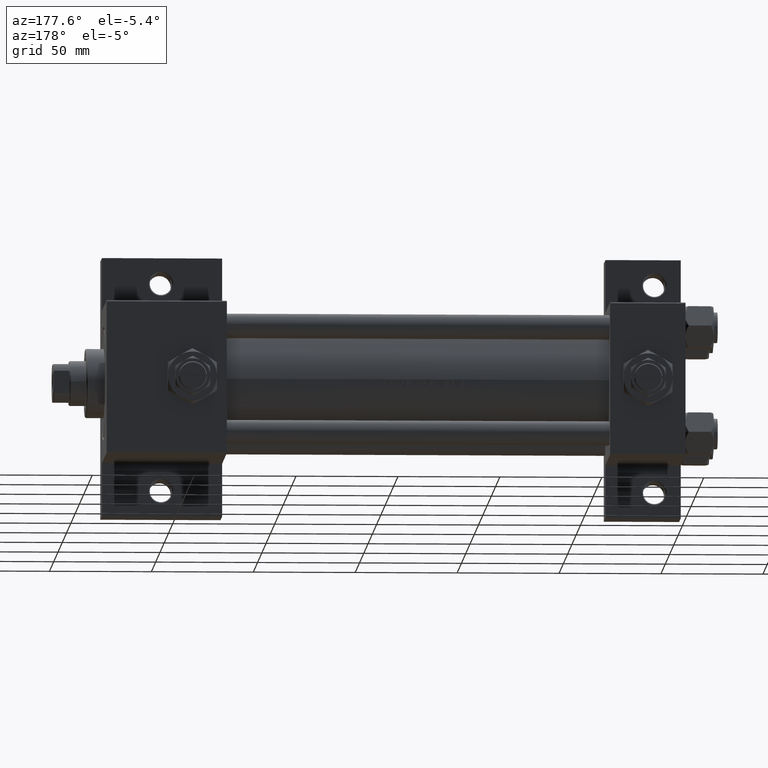
[diagram: clean part render]
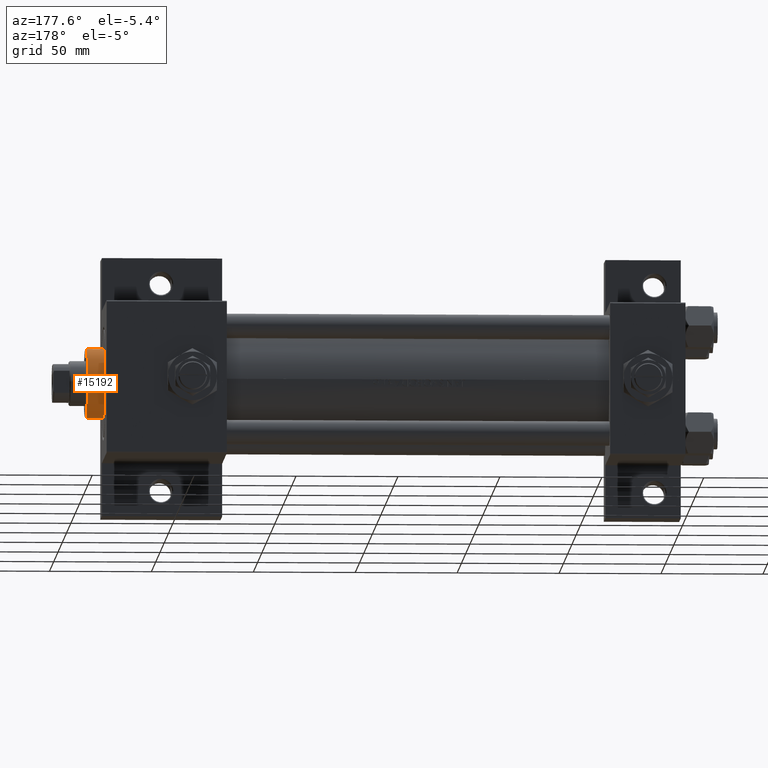
[diagram: same view with one face highlighted and labeled with its STEP entity id]
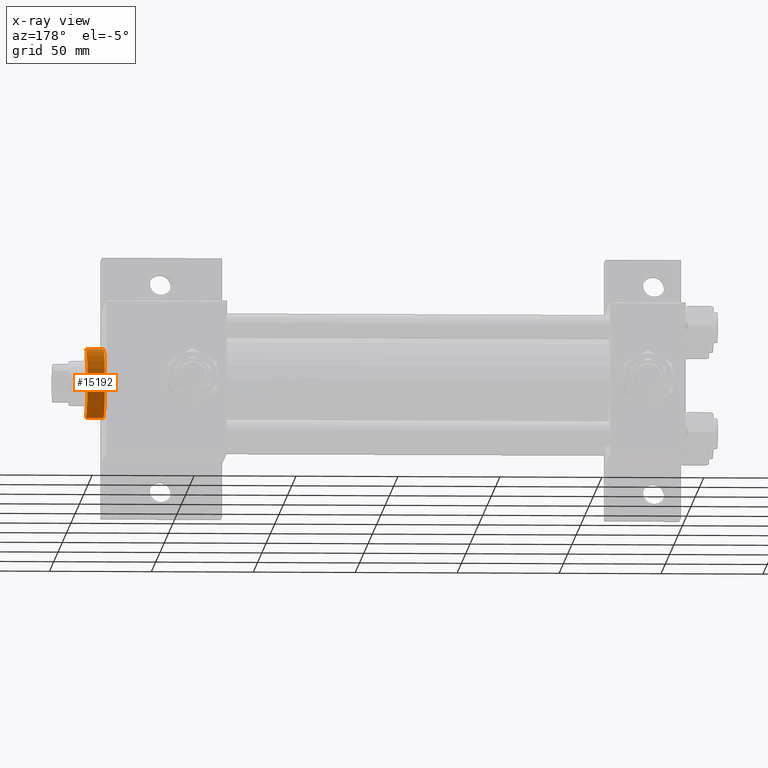
[diagram: x-ray of the same camera — body ghosted, the highlighted face saturated]
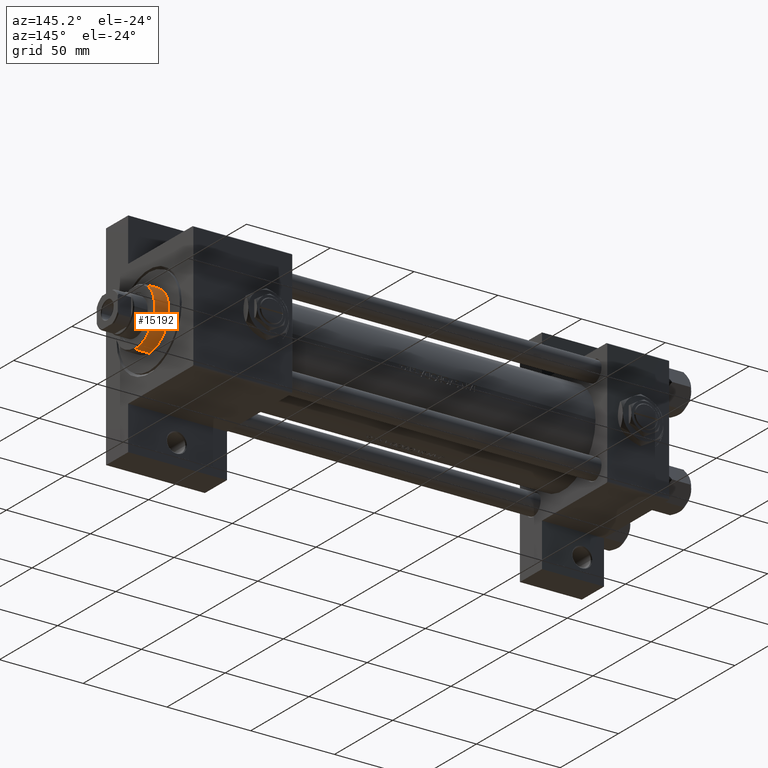
[diagram: same view with one face highlighted and labeled with its STEP entity id]
A machine part, auxiliary view. The second image highlights one B-rep face of the part: STEP entity #15192.
The next image is the same camera in x-ray: the body ghosted, the highlighted face saturated — about 0% of this face is hidden behind the body in this view.
A second angle (auxiliary view) of the same face is appended — the face is thin or edge-on in the first view.
In plain terms, the highlighted cylindrical surface (edge-blend (fillet) strip) has radius 17 mm, axis along (-1, -0, 0).
Its self-contained STEP definition (entity closure, byte-faithful):
#1501 = VERTEX_POINT ( 'NONE', #40816 ) ;
#2870 = LINE ( 'NONE', #40803, #29429 ) ;
#4805 = EDGE_CURVE ( 'NONE', #16781, #1501, #33349, .T. ) ;
#7743 = VERTEX_POINT ( 'NONE', #15019 ) ;
#15019 = CARTESIAN_POINT ( 'NONE',  ( 17.00000000000000000, 2.081899558550500280E-15, 37.19999999999999574 ) ) ;
#15192 = ADVANCED_FACE ( 'NONE', ( #25767 ), #21798, .T. ) ;
#15207 = DIRECTION ( 'NONE',  ( -0.000000000000000000, -0.000000000000000000, -1.000000000000000000 ) ) ;
#15953 = EDGE_CURVE ( 'NONE', #7743, #16781, #22424, .T. ) ;
#16781 = VERTEX_POINT ( 'NONE', #47008 ) ;
#17509 = AXIS2_PLACEMENT_3D ( 'NONE', #41862, #30704, #19291 ) ;
#18403 = ORIENTED_EDGE ( 'NONE', *, *, #15953, .T. ) ;
#19282 = VERTEX_POINT ( 'NONE', #21677 ) ;
#19291 = DIRECTION ( 'NONE',  ( 1.000000000000000000, 0.000000000000000000, 0.000000000000000000 ) ) ;
#20561 = CARTESIAN_POINT ( 'NONE',  ( 0.000000000000000000, 0.000000000000000000, 37.19999999999999574 ) ) ;
#21677 = CARTESIAN_POINT ( 'NONE',  ( -17.00000000000000000, 0.000000000000000000, 37.19999999999999574 ) ) ;
#21798 = CYLINDRICAL_SURFACE ( 'NONE', #24112, 17.00000000000000000 ) ;
#21938 = DIRECTION ( 'NONE',  ( -0.000000000000000000, -0.000000000000000000, -1.000000000000000000 ) ) ;
#22424 = LINE ( 'NONE', #29862, #29659 ) ;
#23449 = EDGE_CURVE ( 'NONE', #19282, #1501, #2870, .T. ) ;
#24112 = AXIS2_PLACEMENT_3D ( 'NONE', #47426, #46689, #47182 ) ;
#25767 = FACE_OUTER_BOUND ( 'NONE', #44174, .T. ) ;
#27486 = ORIENTED_EDGE ( 'NONE', *, *, #23449, .F. ) ;
#29429 = VECTOR ( 'NONE', #21938, 1000.000000000000000 ) ;
#29659 = VECTOR ( 'NONE', #15207, 1000.000000000000000 ) ;
#29862 = CARTESIAN_POINT ( 'NONE',  ( 17.00000000000000000, 2.081899558550500280E-15, 37.69999999999999574 ) ) ;
#30704 = DIRECTION ( 'NONE',  ( 0.000000000000000000, 0.000000000000000000, 1.000000000000000000 ) ) ;
#32464 = DIRECTION ( 'NONE',  ( 0.000000000000000000, 0.000000000000000000, -1.000000000000000000 ) ) ;
#33073 = AXIS2_PLACEMENT_3D ( 'NONE', #20561, #32464, #39924 ) ;
#33349 = CIRCLE ( 'NONE', #17509, 17.00000000000000000 ) ;
#39924 = DIRECTION ( 'NONE',  ( 1.000000000000000000, 0.000000000000000000, 0.000000000000000000 ) ) ;
#40803 = CARTESIAN_POINT ( 'NONE',  ( -17.00000000000000000, 0.000000000000000000, 37.69999999999999574 ) ) ;
#40816 = CARTESIAN_POINT ( 'NONE',  ( -17.00000000000000000, 0.000000000000000000, 28.69999999999999929 ) ) ;
#41618 = ORIENTED_EDGE ( 'NONE', *, *, #46390, .T. ) ;
#41862 = CARTESIAN_POINT ( 'NONE',  ( 0.000000000000000000, 0.000000000000000000, 28.69999999999999929 ) ) ;
#43581 = ORIENTED_EDGE ( 'NONE', *, *, #4805, .T. ) ;
#44174 = EDGE_LOOP ( 'NONE', ( #41618, #18403, #43581, #27486 ) ) ;
#46390 = EDGE_CURVE ( 'NONE', #19282, #7743, #46565, .T. ) ;
#46565 = CIRCLE ( 'NONE', #33073, 17.00000000000000000 ) ;
#46689 = DIRECTION ( 'NONE',  ( -0.000000000000000000, -0.000000000000000000, -1.000000000000000000 ) ) ;
#47008 = CARTESIAN_POINT ( 'NONE',  ( 17.00000000000000000, 2.081899558550500280E-15, 28.69999999999999929 ) ) ;
#47182 = DIRECTION ( 'NONE',  ( -1.000000000000000000, 0.000000000000000000, 0.000000000000000000 ) ) ;
#47426 = CARTESIAN_POINT ( 'NONE',  ( 0.000000000000000000, 0.000000000000000000, 37.69999999999999574 ) ) ;